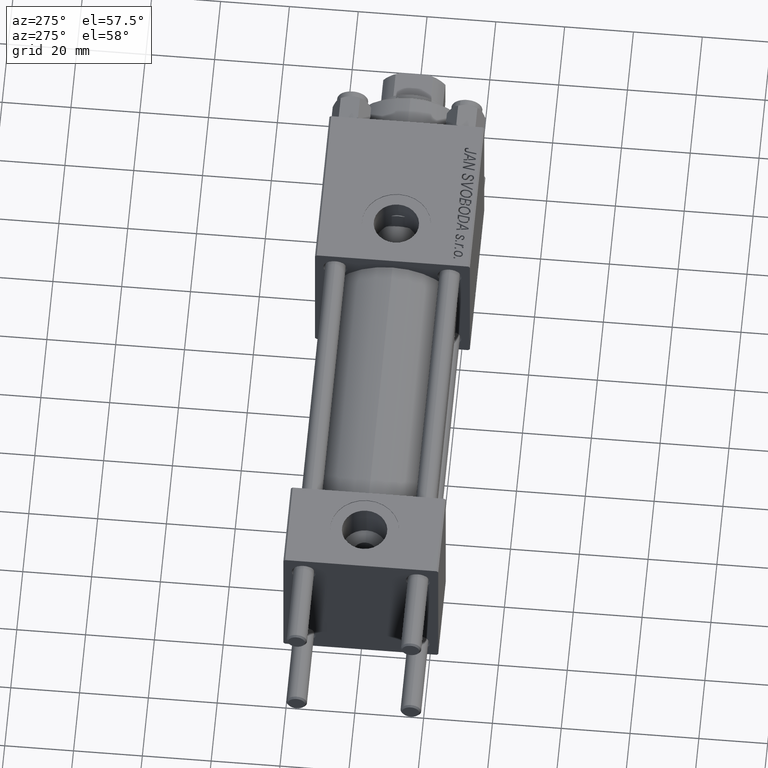
[diagram: clean part render]
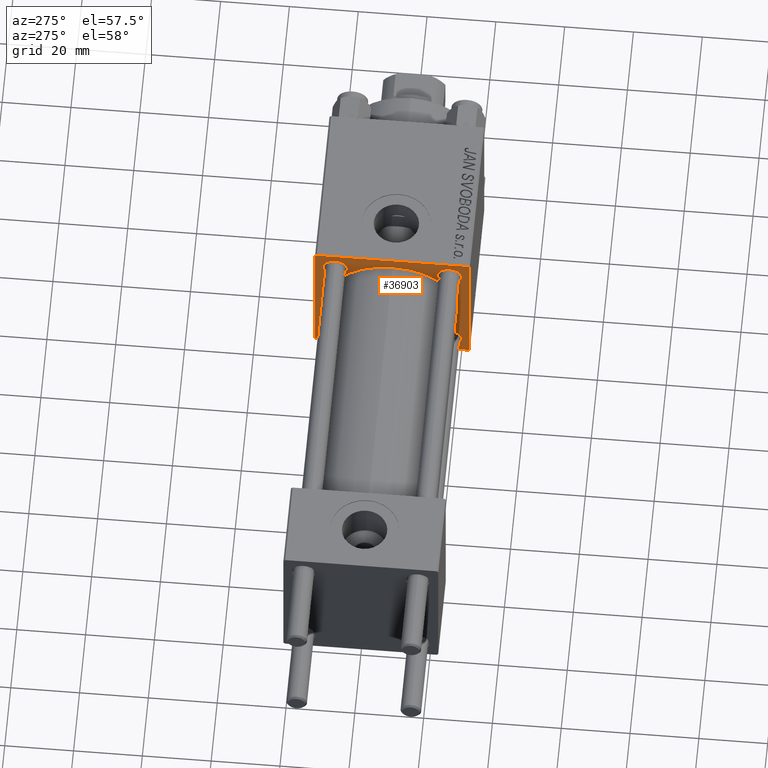
[diagram: same view with one face highlighted and labeled with its STEP entity id]
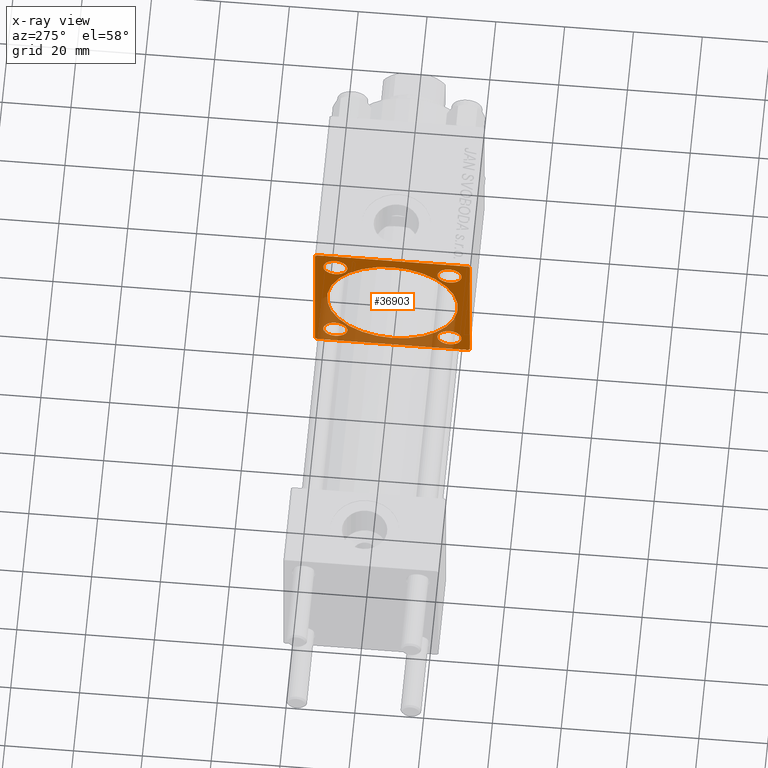
[diagram: x-ray of the same camera — body ghosted, the highlighted face saturated]
A machine part, auxiliary view. The second image highlights one B-rep face of the part: STEP entity #36903.
The next image is the same camera in x-ray: the body ghosted, the highlighted face saturated — about 34% of this face is hidden behind the body in this view.
In plain terms, the highlighted planar face has unit normal (-1, 0, 0).
Its self-contained STEP definition (entity closure, byte-faithful):
#154 = DIRECTION ( 'NONE',  ( -1.000000000000000000, 0.000000000000000000, -0.000000000000000000 ) ) ;
#645 = EDGE_CURVE ( 'NONE', #7628, #33969, #18960, .T. ) ;
#1001 = VERTEX_POINT ( 'NONE', #9187 ) ;
#1036 = VECTOR ( 'NONE', #18781, 1000.000000000000000 ) ;
#1119 = DIRECTION ( 'NONE',  ( 1.000000000000000000, -0.000000000000000000, 0.000000000000000000 ) ) ;
#1599 = DIRECTION ( 'NONE',  ( 0.000000000000000000, 0.000000000000000000, -1.000000000000000000 ) ) ;
#1626 = ORIENTED_EDGE ( 'NONE', *, *, #32684, .T. ) ;
#1834 = CARTESIAN_POINT ( 'NONE',  ( 105.0000000000000142, 16.59999999999999787, -20.10000000000006182 ) ) ;
#1856 = DIRECTION ( 'NONE',  ( 1.000000000000000000, 0.000000000000000000, 0.000000000000000000 ) ) ;
#2079 = DIRECTION ( 'NONE',  ( 1.000000000000000000, -0.000000000000000000, 0.000000000000000000 ) ) ;
#2410 = CARTESIAN_POINT ( 'NONE',  ( 105.0000000000000142, 21.99999999999998934, -22.49999999999999645 ) ) ;
#2455 = EDGE_CURVE ( 'NONE', #43260, #6195, #45653, .T. ) ;
#2535 = DIRECTION ( 'NONE',  ( -0.000000000000000000, 0.000000000000000000, 1.000000000000000000 ) ) ;
#3191 = CARTESIAN_POINT ( 'NONE',  ( 105.0000000000000142, -16.59999999999999076, -20.10000000000006537 ) ) ;
#3683 = LINE ( 'NONE', #37603, #30605 ) ;
#4048 = CARTESIAN_POINT ( 'NONE',  ( 105.0000000000000142, -22.25000000000015277, -22.24999999999984013 ) ) ;
#4242 = AXIS2_PLACEMENT_3D ( 'NONE', #20508, #32410, #5847 ) ;
#4358 = CARTESIAN_POINT ( 'NONE',  ( 105.0000000000000142, 22.50000000000000355, -21.99999999999995381 ) ) ;
#4363 = CIRCLE ( 'NONE', #47162, 3.499999999999989342 ) ;
#4471 = VECTOR ( 'NONE', #10995, 1000.000000000000000 ) ;
#4524 = EDGE_CURVE ( 'NONE', #1001, #40617, #26364, .T. ) ;
#5228 = AXIS2_PLACEMENT_3D ( 'NONE', #14900, #14416, #34414 ) ;
#5309 = DIRECTION ( 'NONE',  ( 0.000000000000000000, 0.000000000000000000, 1.000000000000000000 ) ) ;
#5560 = CARTESIAN_POINT ( 'NONE',  ( 105.0000000000000142, 16.59999999999999787, -16.60000000000000497 ) ) ;
#5841 = LINE ( 'NONE', #29623, #10464 ) ;
#5847 = DIRECTION ( 'NONE',  ( 0.000000000000000000, 0.000000000000000000, -1.000000000000000000 ) ) ;
#6195 = VERTEX_POINT ( 'NONE', #19222 ) ;
#6370 = LINE ( 'NONE', #20773, #29217 ) ;
#6829 = FACE_BOUND ( 'NONE', #20671, .T. ) ;
#7008 = CARTESIAN_POINT ( 'NONE',  ( 105.0000000000000142, -21.99999999999998224, -22.50000000000000000 ) ) ;
#7396 = EDGE_LOOP ( 'NONE', ( #9816, #19495 ) ) ;
#7414 = VECTOR ( 'NONE', #26884, 1000.000000000000000 ) ;
#7628 = VERTEX_POINT ( 'NONE', #16958 ) ;
#8852 = DIRECTION ( 'NONE',  ( 1.000000000000000000, -0.000000000000000000, 0.000000000000000000 ) ) ;
#9187 = CARTESIAN_POINT ( 'NONE',  ( 105.0000000000000142, 16.59999999999999787, -13.09999999999994458 ) ) ;
#9220 = VERTEX_POINT ( 'NONE', #36605 ) ;
#9717 = ORIENTED_EDGE ( 'NONE', *, *, #37532, .T. ) ;
#9816 = ORIENTED_EDGE ( 'NONE', *, *, #35011, .T. ) ;
#10130 = CARTESIAN_POINT ( 'NONE',  ( 105.0000000000000142, 0.000000000000000000, 0.000000000000000000 ) ) ;
#10464 = VECTOR ( 'NONE', #36712, 1000.000000000000114 ) ;
#10936 = EDGE_LOOP ( 'NONE', ( #37986, #23782 ) ) ;
#10995 = DIRECTION ( 'NONE',  ( 0.000000000000000000, 0.000000000000000000, -1.000000000000000000 ) ) ;
#11462 = LINE ( 'NONE', #31196, #7414 ) ;
#11483 = ORIENTED_EDGE ( 'NONE', *, *, #18874, .F. ) ;
#11531 = CIRCLE ( 'NONE', #27665, 3.500000000000058620 ) ;
#11780 = FACE_OUTER_BOUND ( 'NONE', #15707, .T. ) ;
#12987 = VECTOR ( 'NONE', #19468, 999.9999999999998863 ) ;
#13175 = AXIS2_PLACEMENT_3D ( 'NONE', #39037, #1856, #1599 ) ;
#13469 = CARTESIAN_POINT ( 'NONE',  ( 105.0000000000000142, -22.49999999999999645, 21.99999999999999289 ) ) ;
#13679 = CARTESIAN_POINT ( 'NONE',  ( 105.0000000000000142, 16.59999999999999787, -16.60000000000000497 ) ) ;
#13962 = VERTEX_POINT ( 'NONE', #22417 ) ;
#14280 = CARTESIAN_POINT ( 'NONE',  ( 105.0000000000000142, -22.49999999999999645, 22.49999999999999289 ) ) ;
#14416 = DIRECTION ( 'NONE',  ( 1.000000000000000000, -0.000000000000000000, 0.000000000000000000 ) ) ;
#14556 = DIRECTION ( 'NONE',  ( 0.000000000000000000, -1.000000000000000000, -2.312964634635742957E-16 ) ) ;
#14900 = CARTESIAN_POINT ( 'NONE',  ( 105.0000000000000142, -16.59999999999999076, -16.60000000000000853 ) ) ;
#15080 = VERTEX_POINT ( 'NONE', #7008 ) ;
#15707 = EDGE_LOOP ( 'NONE', ( #40974, #45348, #29454, #30648, #11483, #22804, #31333, #26828 ) ) ;
#15726 = DIRECTION ( 'NONE',  ( 0.000000000000000000, 0.000000000000000000, 1.000000000000000000 ) ) ;
#16735 = VERTEX_POINT ( 'NONE', #38316 ) ;
#16803 = DIRECTION ( 'NONE',  ( -0.000000000000000000, -0.7071067811865376918, -0.7071067811865574537 ) ) ;
#16958 = CARTESIAN_POINT ( 'NONE',  ( 105.0000000000000142, -16.59999999999999076, 20.09999999999999787 ) ) ;
#17492 = DIRECTION ( 'NONE',  ( 0.000000000000000000, 0.000000000000000000, 1.000000000000000000 ) ) ;
#18781 = DIRECTION ( 'NONE',  ( 0.000000000000000000, -1.000000000000000000, -7.709882115452476934E-17 ) ) ;
#18874 = EDGE_CURVE ( 'NONE', #44520, #43915, #3683, .T. ) ;
#18905 = VERTEX_POINT ( 'NONE', #3191 ) ;
#18960 = CIRCLE ( 'NONE', #43985, 3.499999999999989342 ) ;
#19016 = EDGE_CURVE ( 'NONE', #33969, #7628, #28992, .T. ) ;
#19222 = CARTESIAN_POINT ( 'NONE',  ( 105.0000000000000142, -22.49999999999999645, -21.99999999999997868 ) ) ;
#19468 = DIRECTION ( 'NONE',  ( 0.000000000000000000, -0.7071067811865425767, 0.7071067811865525687 ) ) ;
#19495 = ORIENTED_EDGE ( 'NONE', *, *, #48782, .T. ) ;
#20508 = CARTESIAN_POINT ( 'NONE',  ( 105.0000000000000142, 0.000000000000000000, 0.000000000000000000 ) ) ;
#20625 = EDGE_CURVE ( 'NONE', #44520, #16735, #5841, .T. ) ;
#20671 = EDGE_LOOP ( 'NONE', ( #1626, #34772 ) ) ;
#20773 = CARTESIAN_POINT ( 'NONE',  ( 105.0000000000000142, 22.50000000000000355, 22.50000000000000355 ) ) ;
#22012 = CIRCLE ( 'NONE', #34138, 3.499999999999989342 ) ;
#22417 = CARTESIAN_POINT ( 'NONE',  ( 105.0000000000000142, 0.000000000000000000, 19.00000000000000000 ) ) ;
#22572 = LINE ( 'NONE', #37272, #1036 ) ;
#22804 = ORIENTED_EDGE ( 'NONE', *, *, #20625, .T. ) ;
#23779 = AXIS2_PLACEMENT_3D ( 'NONE', #10130, #154, #2535 ) ;
#23782 = ORIENTED_EDGE ( 'NONE', *, *, #19016, .T. ) ;
#24572 = DIRECTION ( 'NONE',  ( 0.000000000000000000, 0.000000000000000000, -1.000000000000000000 ) ) ;
#24671 = CARTESIAN_POINT ( 'NONE',  ( 105.0000000000000142, -16.59999999999999076, 16.60000000000000853 ) ) ;
#25321 = VERTEX_POINT ( 'NONE', #4358 ) ;
#25536 = AXIS2_PLACEMENT_3D ( 'NONE', #36740, #2079, #17492 ) ;
#25551 = VERTEX_POINT ( 'NONE', #31378 ) ;
#25786 = ORIENTED_EDGE ( 'NONE', *, *, #41579, .T. ) ;
#26048 = EDGE_CURVE ( 'NONE', #43260, #43915, #11462, .T. ) ;
#26364 = CIRCLE ( 'NONE', #49817, 3.500000000000058620 ) ;
#26828 = ORIENTED_EDGE ( 'NONE', *, *, #42882, .T. ) ;
#26884 = DIRECTION ( 'NONE',  ( -0.000000000000000000, 0.7071067811865378028, 0.7071067811865573427 ) ) ;
#27426 = VERTEX_POINT ( 'NONE', #37930 ) ;
#27665 = AXIS2_PLACEMENT_3D ( 'NONE', #5560, #8852, #5309 ) ;
#27929 = CARTESIAN_POINT ( 'NONE',  ( 105.0000000000000142, -16.59999999999999076, 16.60000000000000853 ) ) ;
#28121 = DIRECTION ( 'NONE',  ( 1.000000000000000000, -0.000000000000000000, 0.000000000000000000 ) ) ;
#28294 = EDGE_CURVE ( 'NONE', #15080, #6195, #45562, .T. ) ;
#28451 = LINE ( 'NONE', #35065, #42413 ) ;
#28868 = DIRECTION ( 'NONE',  ( 1.000000000000000000, -0.000000000000000000, 0.000000000000000000 ) ) ;
#28992 = CIRCLE ( 'NONE', #33044, 3.499999999999989342 ) ;
#29195 = DIRECTION ( 'NONE',  ( 1.000000000000000000, -0.000000000000000000, 0.000000000000000000 ) ) ;
#29217 = VECTOR ( 'NONE', #24572, 1000.000000000000000 ) ;
#29454 = ORIENTED_EDGE ( 'NONE', *, *, #2455, .F. ) ;
#29613 = FACE_BOUND ( 'NONE', #32893, .T. ) ;
#29623 = CARTESIAN_POINT ( 'NONE',  ( 105.0000000000000142, 22.25000000000000355, 22.25000000000000355 ) ) ;
#29639 = CARTESIAN_POINT ( 'NONE',  ( 105.0000000000000142, -16.59999999999999076, 13.10000000000001741 ) ) ;
#30605 = VECTOR ( 'NONE', #14556, 1000.000000000000000 ) ;
#30648 = ORIENTED_EDGE ( 'NONE', *, *, #26048, .T. ) ;
#31196 = CARTESIAN_POINT ( 'NONE',  ( 105.0000000000000142, -22.25000000000030909, 22.24999999999969447 ) ) ;
#31333 = ORIENTED_EDGE ( 'NONE', *, *, #46378, .T. ) ;
#31378 = CARTESIAN_POINT ( 'NONE',  ( 105.0000000000000142, 16.59999999999999787, 20.09999999999999432 ) ) ;
#32410 = DIRECTION ( 'NONE',  ( 1.000000000000000000, 0.000000000000000000, 0.000000000000000000 ) ) ;
#32684 = EDGE_CURVE ( 'NONE', #13962, #40410, #39817, .T. ) ;
#32744 = CARTESIAN_POINT ( 'NONE',  ( 105.0000000000000142, 16.59999999999999787, 16.60000000000000497 ) ) ;
#32852 = EDGE_CURVE ( 'NONE', #43056, #15080, #22572, .T. ) ;
#32893 = EDGE_LOOP ( 'NONE', ( #25786, #9717 ) ) ;
#33044 = AXIS2_PLACEMENT_3D ( 'NONE', #27929, #1119, #43369 ) ;
#33909 = FACE_BOUND ( 'NONE', #10936, .T. ) ;
#33969 = VERTEX_POINT ( 'NONE', #29639 ) ;
#34138 = AXIS2_PLACEMENT_3D ( 'NONE', #32744, #29195, #36790 ) ;
#34414 = DIRECTION ( 'NONE',  ( 0.000000000000000000, 0.000000000000000000, 1.000000000000000000 ) ) ;
#34772 = ORIENTED_EDGE ( 'NONE', *, *, #48123, .T. ) ;
#34827 = FACE_BOUND ( 'NONE', #34884, .T. ) ;
#34884 = EDGE_LOOP ( 'NONE', ( #39001, #48321 ) ) ;
#35011 = EDGE_CURVE ( 'NONE', #25551, #27426, #4363, .T. ) ;
#35065 = CARTESIAN_POINT ( 'NONE',  ( 105.0000000000000142, 22.25000000000029843, -22.24999999999968026 ) ) ;
#35242 = CARTESIAN_POINT ( 'NONE',  ( 105.0000000000000142, 2.326828918379970970E-15, -19.00000000000000000 ) ) ;
#35933 = CIRCLE ( 'NONE', #5228, 3.500000000000058620 ) ;
#36605 = CARTESIAN_POINT ( 'NONE',  ( 105.0000000000000142, -16.59999999999999076, -13.09999999999994813 ) ) ;
#36712 = DIRECTION ( 'NONE',  ( 0.000000000000000000, 0.7071067811865474617, -0.7071067811865474617 ) ) ;
#36740 = CARTESIAN_POINT ( 'NONE',  ( 105.0000000000000142, -16.59999999999999076, -16.60000000000000853 ) ) ;
#36790 = DIRECTION ( 'NONE',  ( 0.000000000000000000, 0.000000000000000000, 1.000000000000000000 ) ) ;
#36903 = ADVANCED_FACE ( 'NONE', ( #33909, #46445, #34827, #29613, #6829, #11780 ), #37199, .T. ) ;
#37081 = DIRECTION ( 'NONE',  ( 0.000000000000000000, 0.000000000000000000, 1.000000000000000000 ) ) ;
#37199 = PLANE ( 'NONE',  #23779 ) ;
#37272 = CARTESIAN_POINT ( 'NONE',  ( 105.0000000000000142, 22.50000000000000355, -22.49999999999999645 ) ) ;
#37532 = EDGE_CURVE ( 'NONE', #18905, #9220, #35933, .T. ) ;
#37603 = CARTESIAN_POINT ( 'NONE',  ( 105.0000000000000142, 22.50000000000000355, 22.50000000000000355 ) ) ;
#37930 = CARTESIAN_POINT ( 'NONE',  ( 105.0000000000000142, 16.59999999999999787, 13.10000000000001386 ) ) ;
#37986 = ORIENTED_EDGE ( 'NONE', *, *, #645, .T. ) ;
#38316 = CARTESIAN_POINT ( 'NONE',  ( 105.0000000000000142, 22.50000000000000355, 22.00000000000000355 ) ) ;
#38447 = CIRCLE ( 'NONE', #25536, 3.500000000000058620 ) ;
#39001 = ORIENTED_EDGE ( 'NONE', *, *, #4524, .T. ) ;
#39037 = CARTESIAN_POINT ( 'NONE',  ( 105.0000000000000142, 0.000000000000000000, 0.000000000000000000 ) ) ;
#39502 = CARTESIAN_POINT ( 'NONE',  ( 105.0000000000000142, 16.59999999999999787, 16.60000000000000497 ) ) ;
#39817 = CIRCLE ( 'NONE', #13175, 19.00000000000000000 ) ;
#40099 = DIRECTION ( 'NONE',  ( 1.000000000000000000, -0.000000000000000000, 0.000000000000000000 ) ) ;
#40410 = VERTEX_POINT ( 'NONE', #35242 ) ;
#40554 = CARTESIAN_POINT ( 'NONE',  ( 105.0000000000000142, 22.00000000000000355, 22.50000000000000355 ) ) ;
#40617 = VERTEX_POINT ( 'NONE', #1834 ) ;
#40974 = ORIENTED_EDGE ( 'NONE', *, *, #32852, .T. ) ;
#41579 = EDGE_CURVE ( 'NONE', #9220, #18905, #38447, .T. ) ;
#42413 = VECTOR ( 'NONE', #16803, 999.9999999999998863 ) ;
#42882 = EDGE_CURVE ( 'NONE', #25321, #43056, #28451, .T. ) ;
#43056 = VERTEX_POINT ( 'NONE', #2410 ) ;
#43260 = VERTEX_POINT ( 'NONE', #13469 ) ;
#43369 = DIRECTION ( 'NONE',  ( 0.000000000000000000, 0.000000000000000000, 1.000000000000000000 ) ) ;
#43563 = CARTESIAN_POINT ( 'NONE',  ( 105.0000000000000142, -21.99999999999999645, 22.49999999999999289 ) ) ;
#43915 = VERTEX_POINT ( 'NONE', #43563 ) ;
#43985 = AXIS2_PLACEMENT_3D ( 'NONE', #24671, #40099, #37081 ) ;
#44520 = VERTEX_POINT ( 'NONE', #40554 ) ;
#45348 = ORIENTED_EDGE ( 'NONE', *, *, #28294, .T. ) ;
#45458 = CIRCLE ( 'NONE', #4242, 19.00000000000000000 ) ;
#45562 = LINE ( 'NONE', #4048, #12987 ) ;
#45653 = LINE ( 'NONE', #14280, #4471 ) ;
#46378 = EDGE_CURVE ( 'NONE', #16735, #25321, #6370, .T. ) ;
#46445 = FACE_BOUND ( 'NONE', #7396, .T. ) ;
#47162 = AXIS2_PLACEMENT_3D ( 'NONE', #39502, #28121, #15726 ) ;
#48123 = EDGE_CURVE ( 'NONE', #40410, #13962, #45458, .T. ) ;
#48321 = ORIENTED_EDGE ( 'NONE', *, *, #49415, .T. ) ;
#48782 = EDGE_CURVE ( 'NONE', #27426, #25551, #22012, .T. ) ;
#49357 = DIRECTION ( 'NONE',  ( 0.000000000000000000, 0.000000000000000000, 1.000000000000000000 ) ) ;
#49415 = EDGE_CURVE ( 'NONE', #40617, #1001, #11531, .T. ) ;
#49817 = AXIS2_PLACEMENT_3D ( 'NONE', #13679, #28868, #49357 ) ;